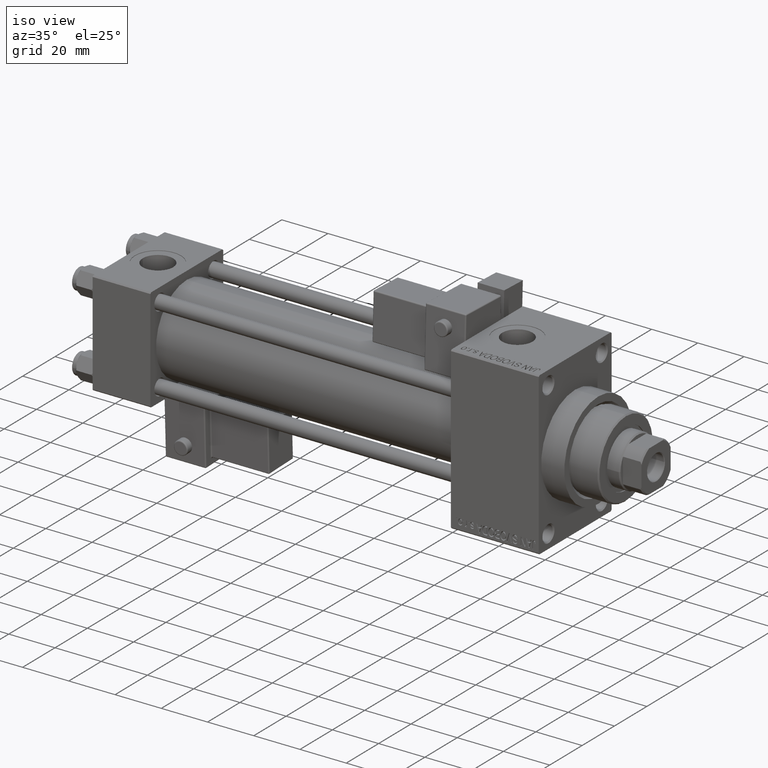
[diagram: clean part render]
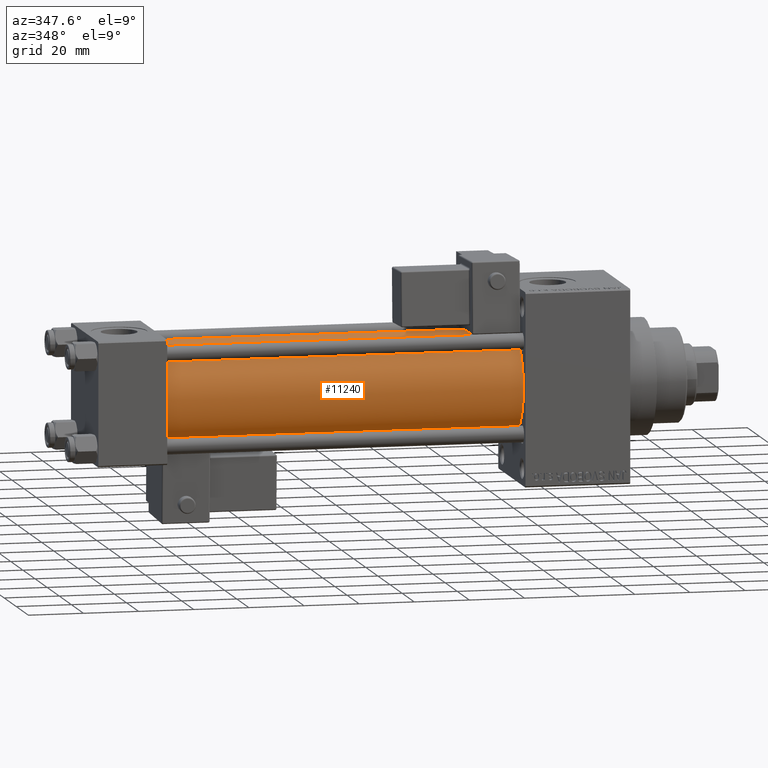
[diagram: tour spotlight — one face highlighted and labeled with its STEP entity id]
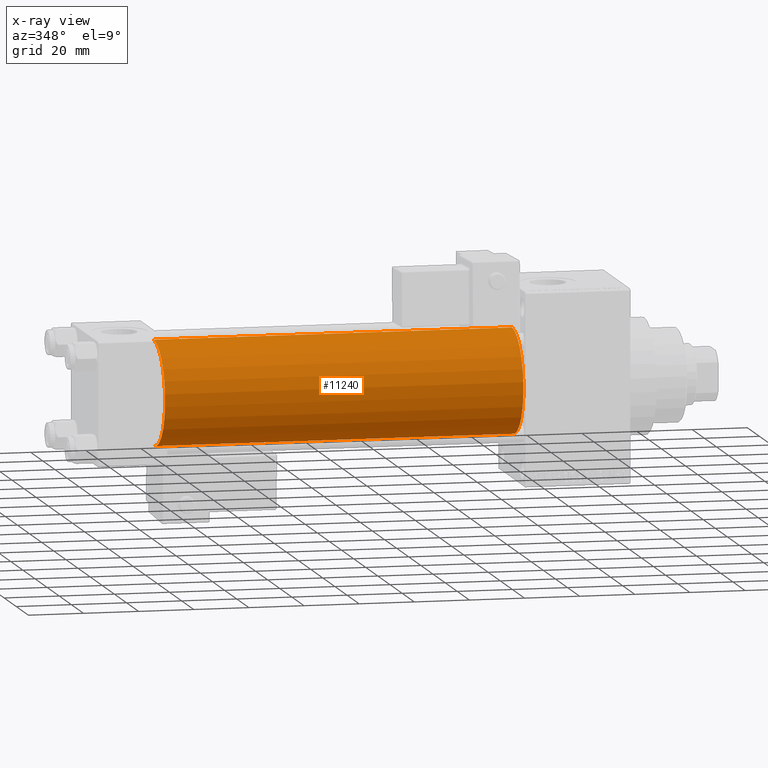
[diagram: x-ray of the same camera — body ghosted, this tour face saturated]
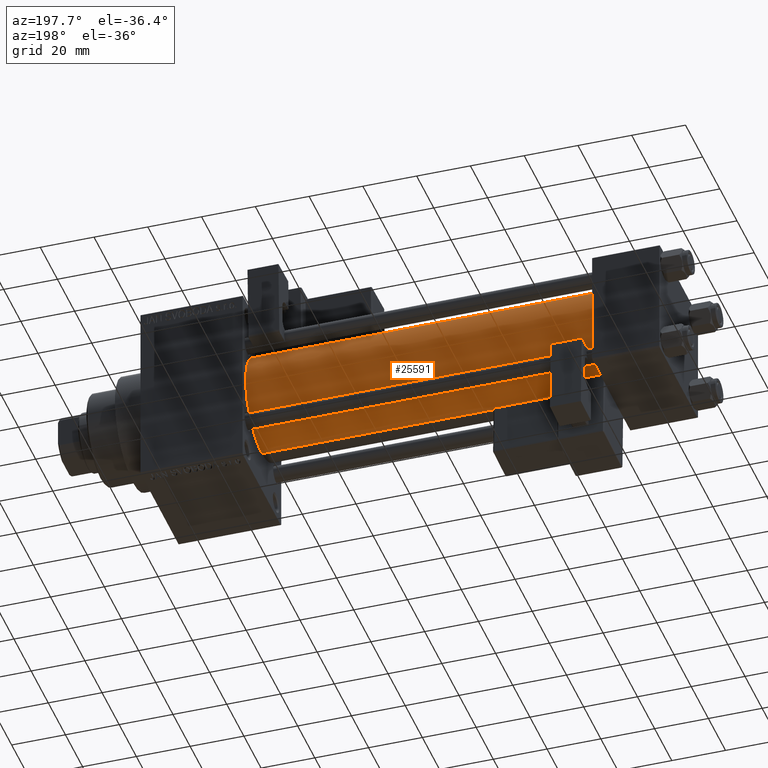
[diagram: tour spotlight — one face highlighted and labeled with its STEP entity id]
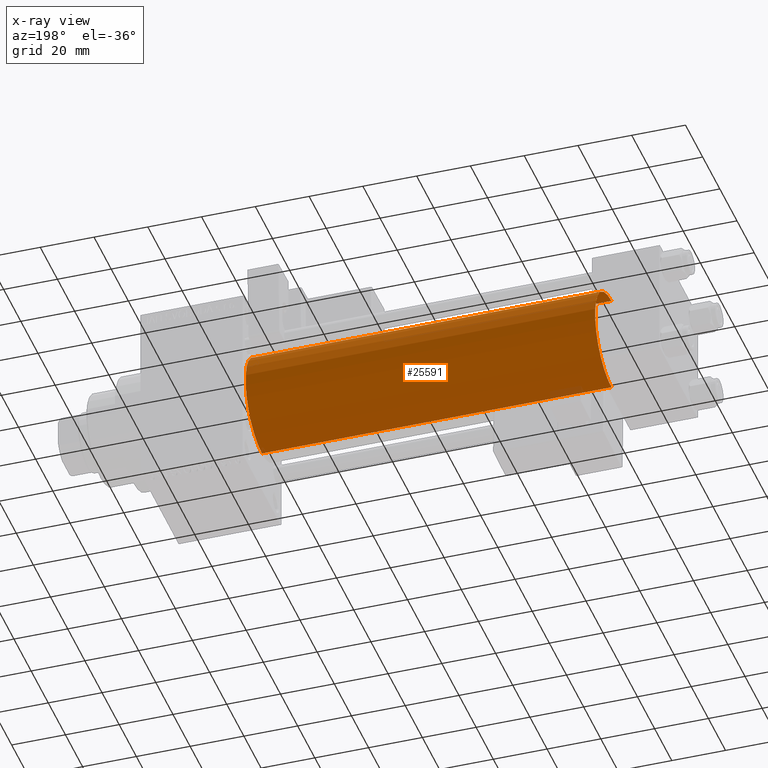
[diagram: x-ray of the same camera — body ghosted, this tour face saturated]
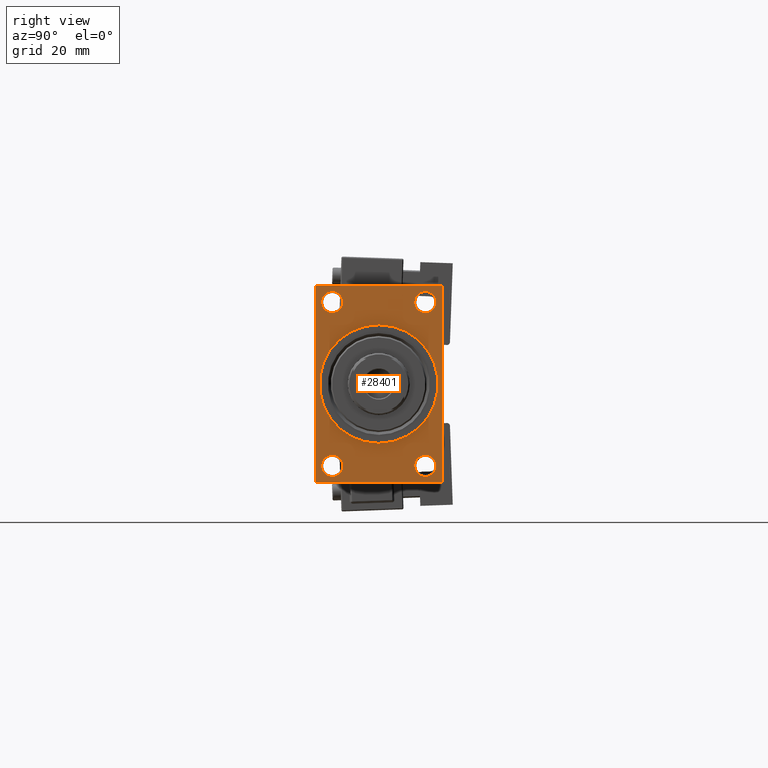
[diagram: tour spotlight — one face highlighted and labeled with its STEP entity id]
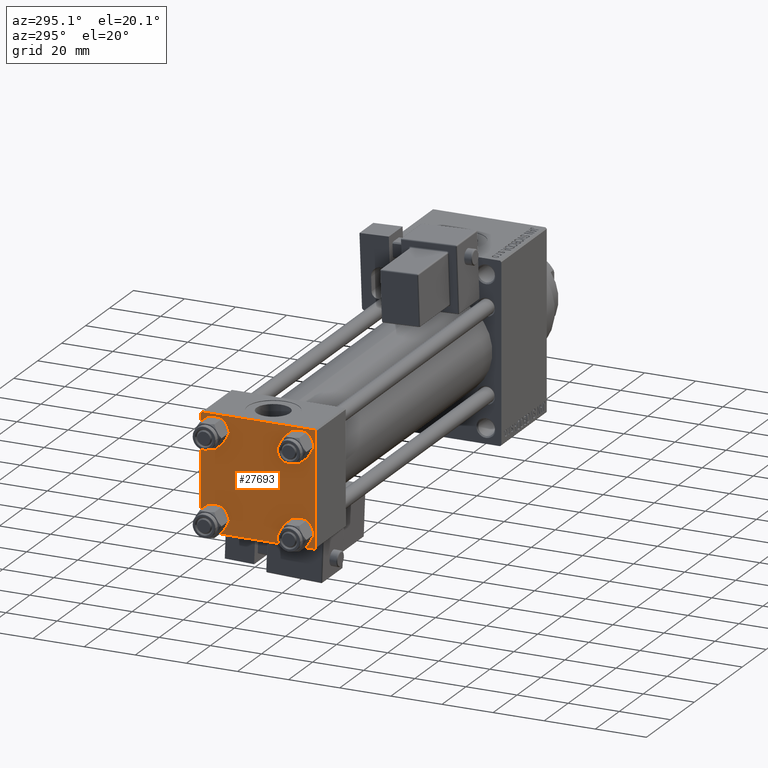
[diagram: tour spotlight — one face highlighted and labeled with its STEP entity id]
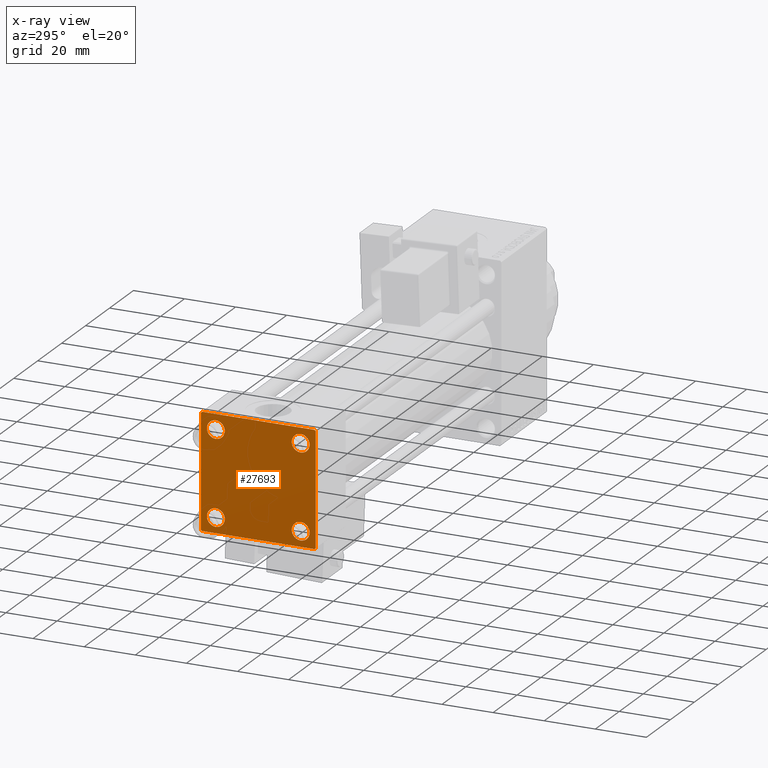
[diagram: x-ray of the same camera — body ghosted, this tour face saturated]
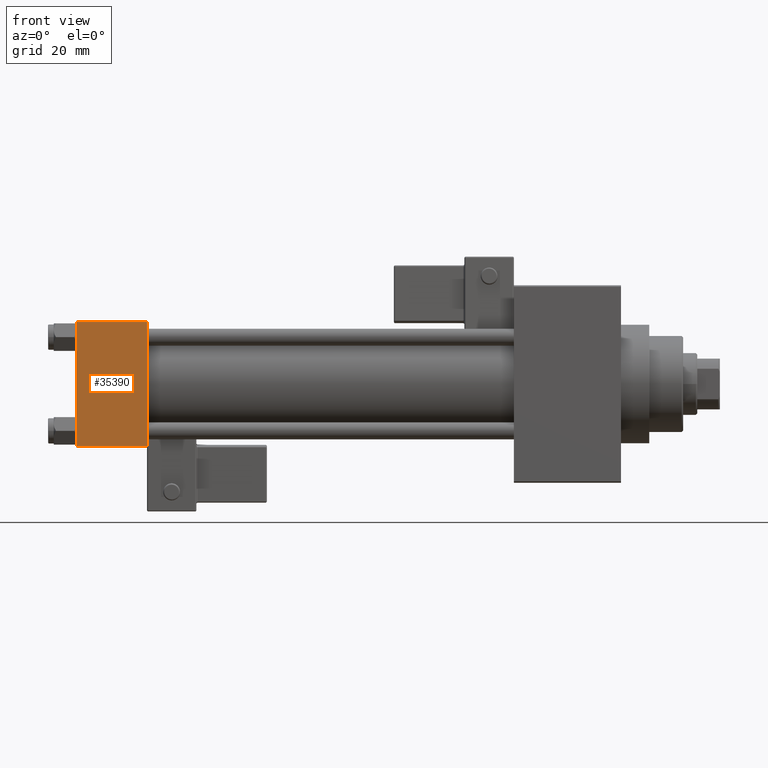
[diagram: tour spotlight — one face highlighted and labeled with its STEP entity id]
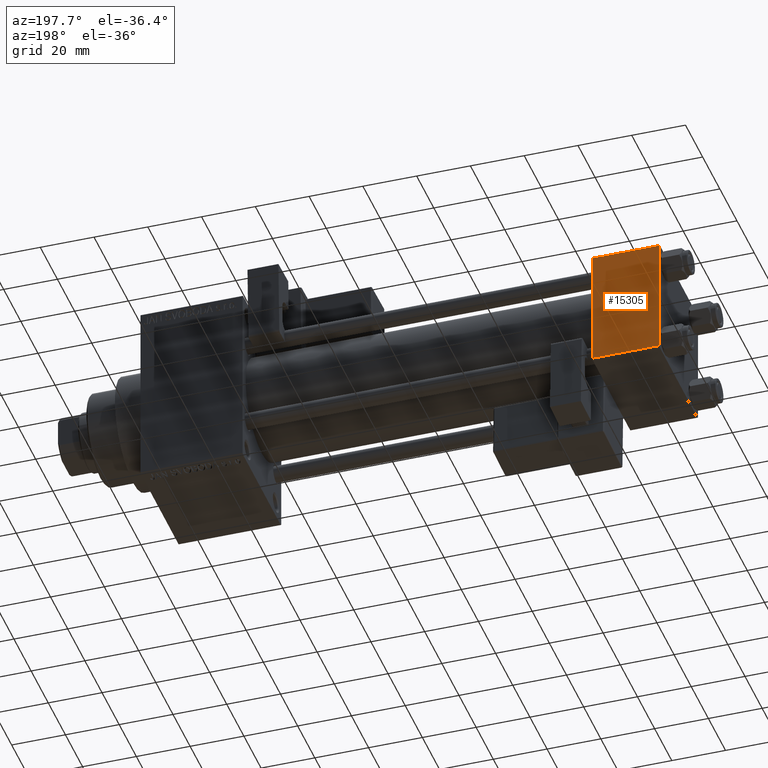
[diagram: tour spotlight — one face highlighted and labeled with its STEP entity id]
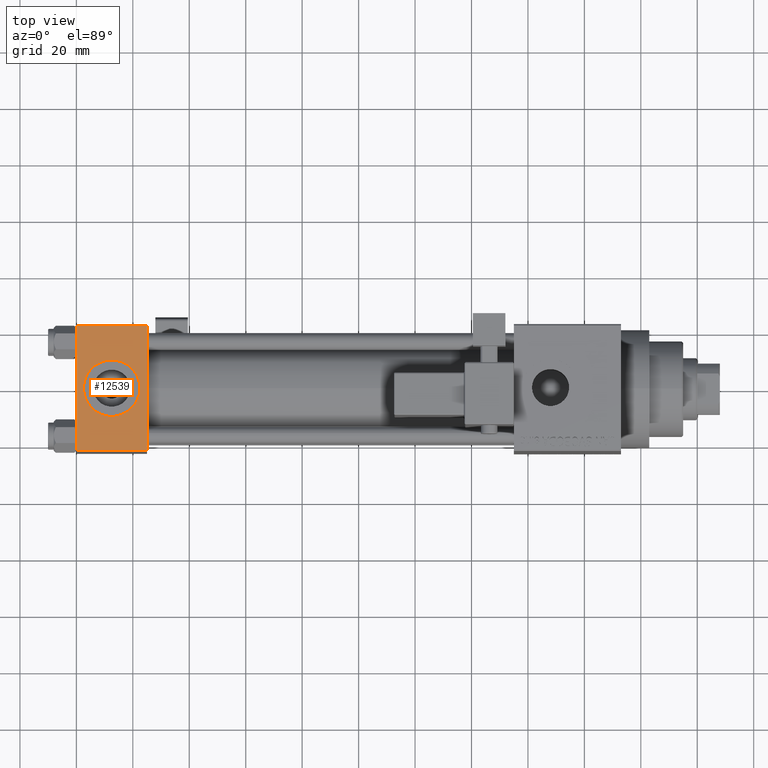
[diagram: tour spotlight — one face highlighted and labeled with its STEP entity id]
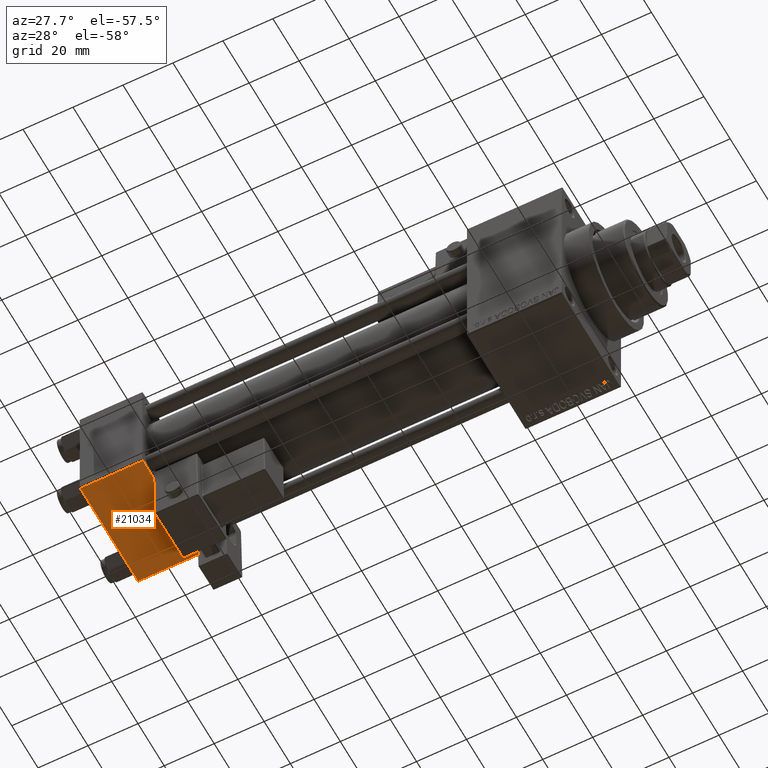
[diagram: tour spotlight — one face highlighted and labeled with its STEP entity id]
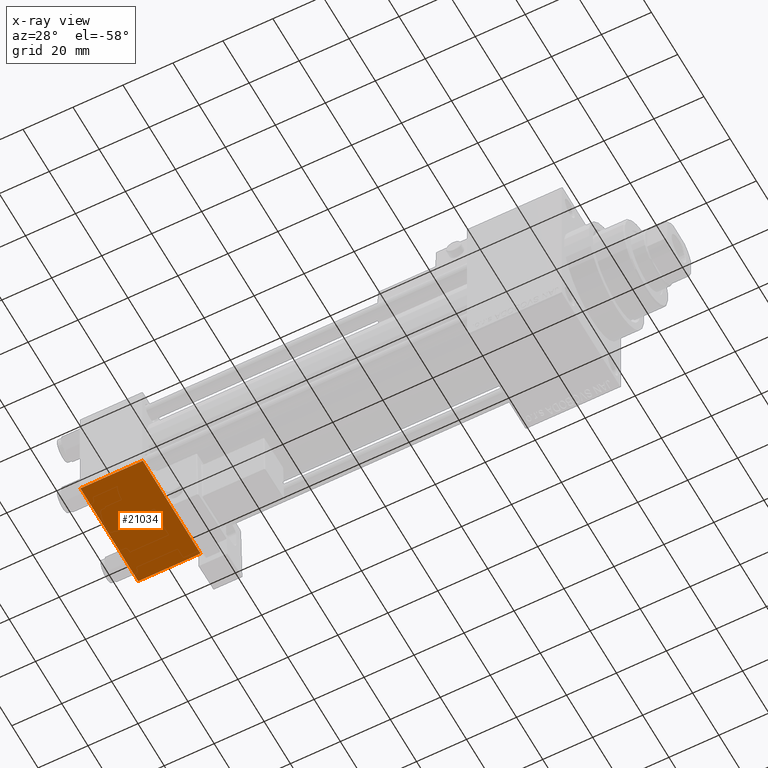
[diagram: x-ray of the same camera — body ghosted, this tour face saturated]
A machine part: a face-by-face anatomy tour. The part has 1262 B-rep faces; the first image is the clean iso view, then the 8 largest visible faces are spotlighted one at a time (largest first), each with its STEP entity span.

Face 1 — auxiliary view, entity #11240. An x-ray twin of the same camera follows (body ghosted, this face saturated) — the face is partly hidden behind the body. In plain terms, the highlighted cylindrical surface (partial cylindrical patch) has radius 19 mm, axis along (-1, -0, -0).
Definition (entity closure, byte-faithful):
#107 = EDGE_CURVE ( 'NONE', #46846, #5130, #5147, .T. ) ;
#403 = CARTESIAN_POINT ( 'NONE',  ( 155.0000000000000000, -2.752562955852396712E-16, -19.00000000000000000 ) ) ;
#5130 = VERTEX_POINT ( 'NONE', #43047 ) ;
#5147 = LINE ( 'NONE', #403, #17198 ) ;
#5642 = AXIS2_PLACEMENT_3D ( 'NONE', #49455, #38683, #48971 ) ;
#7698 = AXIS2_PLACEMENT_3D ( 'NONE', #30702, #38213, #45476 ) ;
#8611 = CIRCLE ( 'NONE', #7698, 19.00000000000000000 ) ;
#10960 = FACE_OUTER_BOUND ( 'NONE', #19989, .T. ) ;
#11240 = ADVANCED_FACE ( 'NONE', ( #10960 ), #26928, .T. ) ;
#11315 = EDGE_CURVE ( 'NONE', #30361, #5130, #24786, .T. ) ;
#15656 = DIRECTION ( 'NONE',  ( -1.000000000000000000, -0.000000000000000000, -0.000000000000000000 ) ) ;
#16425 = CARTESIAN_POINT ( 'NONE',  ( 24.99999999999999289, -2.602085213965210642E-15, 0.000000000000000000 ) ) ;
#17198 = VECTOR ( 'NONE', #15656, 1000.000000000000000 ) ;
#17264 = EDGE_CURVE ( 'NONE', #37964, #30361, #45819, .T. ) ;
#19989 = EDGE_LOOP ( 'NONE', ( #30769, #47817, #47914, #26448 ) ) ;
#23042 = CARTESIAN_POINT ( 'NONE',  ( 155.0000000000000000, -2.602085213965210642E-15, 19.00000000000000000 ) ) ;
#24786 = CIRCLE ( 'NONE', #28781, 19.00000000000000000 ) ;
#25347 = DIRECTION ( 'NONE',  ( 1.000000000000000000, -0.000000000000000000, 0.000000000000000000 ) ) ;
#26448 = ORIENTED_EDGE ( 'NONE', *, *, #11315, .T. ) ;
#26928 = CYLINDRICAL_SURFACE ( 'NONE', #5642, 19.00000000000000000 ) ;
#28781 = AXIS2_PLACEMENT_3D ( 'NONE', #16425, #25347, #40617 ) ;
#30361 = VERTEX_POINT ( 'NONE', #39213 ) ;
#30702 = CARTESIAN_POINT ( 'NONE',  ( 155.0000000000000000, -2.602085213965210642E-15, 0.000000000000000000 ) ) ;
#30769 = ORIENTED_EDGE ( 'NONE', *, *, #107, .F. ) ;
#31234 = VECTOR ( 'NONE', #33816, 1000.000000000000000 ) ;
#33816 = DIRECTION ( 'NONE',  ( -1.000000000000000000, -0.000000000000000000, -0.000000000000000000 ) ) ;
#37964 = VERTEX_POINT ( 'NONE', #45060 ) ;
#38213 = DIRECTION ( 'NONE',  ( 1.000000000000000000, 0.000000000000000000, 0.000000000000000000 ) ) ;
#38683 = DIRECTION ( 'NONE',  ( -1.000000000000000000, -0.000000000000000000, -0.000000000000000000 ) ) ;
#39213 = CARTESIAN_POINT ( 'NONE',  ( 24.99999999999999289, -2.602085213965210642E-15, 19.00000000000000000 ) ) ;
#40617 = DIRECTION ( 'NONE',  ( 0.000000000000000000, 0.000000000000000000, 1.000000000000000000 ) ) ;
#41395 = CARTESIAN_POINT ( 'NONE',  ( 155.0000000000000000, -2.752562955852396712E-16, -19.00000000000000000 ) ) ;
#43047 = CARTESIAN_POINT ( 'NONE',  ( 24.99999999999999289, -2.752562955852396712E-16, -19.00000000000000000 ) ) ;
#44522 = EDGE_CURVE ( 'NONE', #37964, #46846, #8611, .T. ) ;
#45060 = CARTESIAN_POINT ( 'NONE',  ( 155.0000000000000000, -2.602085213965210642E-15, 19.00000000000000000 ) ) ;
#45476 = DIRECTION ( 'NONE',  ( 0.000000000000000000, 0.000000000000000000, -1.000000000000000000 ) ) ;
#45819 = LINE ( 'NONE', #23042, #31234 ) ;
#46846 = VERTEX_POINT ( 'NONE', #41395 ) ;
#47817 = ORIENTED_EDGE ( 'NONE', *, *, #44522, .F. ) ;
#47914 = ORIENTED_EDGE ( 'NONE', *, *, #17264, .T. ) ;
#48971 = DIRECTION ( 'NONE',  ( 0.000000000000000000, 0.000000000000000000, 1.000000000000000000 ) ) ;
#49455 = CARTESIAN_POINT ( 'NONE',  ( 155.0000000000000000, -2.602085213965210642E-15, 0.000000000000000000 ) ) ;

Face 2 — auxiliary view, entity #25591. An x-ray twin of the same camera follows (body ghosted, this face saturated) — the face is partly hidden behind the body. In plain terms, the highlighted cylindrical surface (partial cylindrical patch) has radius 19 mm, axis along (-1, -0, -0).
Definition (entity closure, byte-faithful):
#107 = EDGE_CURVE ( 'NONE', #46846, #5130, #5147, .T. ) ;
#403 = CARTESIAN_POINT ( 'NONE',  ( 155.0000000000000000, -2.752562955852396712E-16, -19.00000000000000000 ) ) ;
#2897 = CARTESIAN_POINT ( 'NONE',  ( 155.0000000000000000, -2.602085213965210642E-15, 0.000000000000000000 ) ) ;
#5130 = VERTEX_POINT ( 'NONE', #43047 ) ;
#5147 = LINE ( 'NONE', #403, #17198 ) ;
#5740 = CIRCLE ( 'NONE', #40863, 19.00000000000000000 ) ;
#7201 = ORIENTED_EDGE ( 'NONE', *, *, #17264, .F. ) ;
#12858 = DIRECTION ( 'NONE',  ( 1.000000000000000000, -0.000000000000000000, 0.000000000000000000 ) ) ;
#15656 = DIRECTION ( 'NONE',  ( -1.000000000000000000, -0.000000000000000000, -0.000000000000000000 ) ) ;
#16083 = EDGE_CURVE ( 'NONE', #46846, #37964, #36023, .T. ) ;
#16356 = DIRECTION ( 'NONE',  ( 0.000000000000000000, 0.000000000000000000, 1.000000000000000000 ) ) ;
#16576 = ORIENTED_EDGE ( 'NONE', *, *, #17056, .T. ) ;
#17056 = EDGE_CURVE ( 'NONE', #5130, #30361, #5740, .T. ) ;
#17198 = VECTOR ( 'NONE', #15656, 1000.000000000000000 ) ;
#17264 = EDGE_CURVE ( 'NONE', #37964, #30361, #45819, .T. ) ;
#18419 = EDGE_LOOP ( 'NONE', ( #31470, #25817, #16576, #7201 ) ) ;
#18459 = AXIS2_PLACEMENT_3D ( 'NONE', #22917, #38188, #19412 ) ;
#19412 = DIRECTION ( 'NONE',  ( 0.000000000000000000, 0.000000000000000000, -1.000000000000000000 ) ) ;
#21404 = CYLINDRICAL_SURFACE ( 'NONE', #22409, 19.00000000000000000 ) ;
#21889 = DIRECTION ( 'NONE',  ( 0.000000000000000000, 0.000000000000000000, 1.000000000000000000 ) ) ;
#22409 = AXIS2_PLACEMENT_3D ( 'NONE', #2897, #36908, #21889 ) ;
#22917 = CARTESIAN_POINT ( 'NONE',  ( 155.0000000000000000, -2.602085213965210642E-15, 0.000000000000000000 ) ) ;
#23042 = CARTESIAN_POINT ( 'NONE',  ( 155.0000000000000000, -2.602085213965210642E-15, 19.00000000000000000 ) ) ;
#25591 = ADVANCED_FACE ( 'NONE', ( #40421 ), #21404, .T. ) ;
#25817 = ORIENTED_EDGE ( 'NONE', *, *, #107, .T. ) ;
#30361 = VERTEX_POINT ( 'NONE', #39213 ) ;
#31234 = VECTOR ( 'NONE', #33816, 1000.000000000000000 ) ;
#31470 = ORIENTED_EDGE ( 'NONE', *, *, #16083, .F. ) ;
#33816 = DIRECTION ( 'NONE',  ( -1.000000000000000000, -0.000000000000000000, -0.000000000000000000 ) ) ;
#35351 = CARTESIAN_POINT ( 'NONE',  ( 24.99999999999999289, -2.602085213965210642E-15, 0.000000000000000000 ) ) ;
#36023 = CIRCLE ( 'NONE', #18459, 19.00000000000000000 ) ;
#36908 = DIRECTION ( 'NONE',  ( -1.000000000000000000, -0.000000000000000000, -0.000000000000000000 ) ) ;
#37964 = VERTEX_POINT ( 'NONE', #45060 ) ;
#38188 = DIRECTION ( 'NONE',  ( 1.000000000000000000, 0.000000000000000000, 0.000000000000000000 ) ) ;
#39213 = CARTESIAN_POINT ( 'NONE',  ( 24.99999999999999289, -2.602085213965210642E-15, 19.00000000000000000 ) ) ;
#40421 = FACE_OUTER_BOUND ( 'NONE', #18419, .T. ) ;
#40863 = AXIS2_PLACEMENT_3D ( 'NONE', #35351, #12858, #16356 ) ;
#41395 = CARTESIAN_POINT ( 'NONE',  ( 155.0000000000000000, -2.752562955852396712E-16, -19.00000000000000000 ) ) ;
#43047 = CARTESIAN_POINT ( 'NONE',  ( 24.99999999999999289, -2.752562955852396712E-16, -19.00000000000000000 ) ) ;
#45060 = CARTESIAN_POINT ( 'NONE',  ( 155.0000000000000000, -2.602085213965210642E-15, 19.00000000000000000 ) ) ;
#45819 = LINE ( 'NONE', #23042, #31234 ) ;
#46846 = VERTEX_POINT ( 'NONE', #41395 ) ;

Face 3 — right view, entity #28401. In plain terms, the highlighted planar face has unit normal (-1, 0, 0).
Definition (entity closure, byte-faithful):
#369 = CARTESIAN_POINT ( 'NONE',  ( 193.0000000000000000, 22.49999999999999645, -34.50000000000000000 ) ) ;
#939 = DIRECTION ( 'NONE',  ( -1.000000000000000000, 0.000000000000000000, -0.000000000000000000 ) ) ;
#965 = DIRECTION ( 'NONE',  ( -1.000000000000000000, -0.000000000000000000, -0.000000000000000000 ) ) ;
#1065 = DIRECTION ( 'NONE',  ( 0.000000000000000000, 0.000000000000000000, -1.000000000000000000 ) ) ;
#1072 = VERTEX_POINT ( 'NONE', #12626 ) ;
#1722 = AXIS2_PLACEMENT_3D ( 'NONE', #46062, #6840, #37820 ) ;
#2135 = CIRCLE ( 'NONE', #35664, 3.750000000000090150 ) ;
#2590 = DIRECTION ( 'NONE',  ( -1.000000000000000000, -0.000000000000000000, -0.000000000000000000 ) ) ;
#2668 = EDGE_CURVE ( 'NONE', #17245, #25389, #17505, .T. ) ;
#3322 = CARTESIAN_POINT ( 'NONE',  ( 193.0000000000000000, 16.50000000000000000, -28.99999999999999289 ) ) ;
#3793 = CARTESIAN_POINT ( 'NONE',  ( 193.0000000000000000, 21.99999999999999645, 35.00000000000000000 ) ) ;
#4304 = EDGE_CURVE ( 'NONE', #17245, #24439, #20756, .T. ) ;
#4346 = ORIENTED_EDGE ( 'NONE', *, *, #17276, .T. ) ;
#4708 = AXIS2_PLACEMENT_3D ( 'NONE', #3322, #2590, #14583 ) ;
#4839 = ORIENTED_EDGE ( 'NONE', *, *, #2668, .T. ) ;
#4964 = DIRECTION ( 'NONE',  ( 0.000000000000000000, 0.000000000000000000, 1.000000000000000000 ) ) ;
#5859 = DIRECTION ( 'NONE',  ( 0.000000000000000000, 0.000000000000000000, 1.000000000000000000 ) ) ;
#6184 = VECTOR ( 'NONE', #39778, 1000.000000000000000 ) ;
#6439 = DIRECTION ( 'NONE',  ( 0.000000000000000000, 0.000000000000000000, -1.000000000000000000 ) ) ;
#6496 = FACE_BOUND ( 'NONE', #35987, .T. ) ;
#6840 = DIRECTION ( 'NONE',  ( -1.000000000000000000, -0.000000000000000000, -0.000000000000000000 ) ) ;
#6853 = EDGE_CURVE ( 'NONE', #10466, #25807, #17451, .T. ) ;
#8040 = EDGE_LOOP ( 'NONE', ( #11390, #34189 ) ) ;
#8144 = CARTESIAN_POINT ( 'NONE',  ( 193.0000000000000000, -16.50000000000000000, -28.99999999999999289 ) ) ;
#8150 = AXIS2_PLACEMENT_3D ( 'NONE', #31439, #939, #16200 ) ;
#8254 = AXIS2_PLACEMENT_3D ( 'NONE', #33653, #29903, #6439 ) ;
#8590 = ORIENTED_EDGE ( 'NONE', *, *, #14898, .T. ) ;
#8622 = CARTESIAN_POINT ( 'NONE',  ( 193.0000000000000000, 16.50000000000000000, 29.00000000000000355 ) ) ;
#8695 = AXIS2_PLACEMENT_3D ( 'NONE', #8622, #15129, #5859 ) ;
#8802 = EDGE_LOOP ( 'NONE', ( #28400, #16401 ) ) ;
#9074 = CARTESIAN_POINT ( 'NONE',  ( 193.0000000000000000, -22.50000000000000355, -34.50000000000000000 ) ) ;
#9333 = VERTEX_POINT ( 'NONE', #9074 ) ;
#10466 = VERTEX_POINT ( 'NONE', #18580 ) ;
#10631 = VERTEX_POINT ( 'NONE', #36301 ) ;
#10829 = CARTESIAN_POINT ( 'NONE',  ( 193.0000000000000000, 22.49999999999999645, 34.50000000000000000 ) ) ;
#10954 = VECTOR ( 'NONE', #32230, 1000.000000000000000 ) ;
#11390 = ORIENTED_EDGE ( 'NONE', *, *, #45781, .T. ) ;
#11468 = FACE_BOUND ( 'NONE', #31835, .T. ) ;
#11550 = VERTEX_POINT ( 'NONE', #36291 ) ;
#11608 = VECTOR ( 'NONE', #38224, 1000.000000000000000 ) ;
#11776 = CIRCLE ( 'NONE', #4708, 3.750000000000090150 ) ;
#11924 = LINE ( 'NONE', #38666, #21019 ) ;
#12353 = VECTOR ( 'NONE', #36876, 1000.000000000000000 ) ;
#12426 = DIRECTION ( 'NONE',  ( -1.000000000000000000, -0.000000000000000000, -0.000000000000000000 ) ) ;
#12626 = CARTESIAN_POINT ( 'NONE',  ( 193.0000000000000000, 16.50000000000000000, 32.75000000000009237 ) ) ;
#14066 = ORIENTED_EDGE ( 'NONE', *, *, #43209, .T. ) ;
#14583 = DIRECTION ( 'NONE',  ( 0.000000000000000000, 0.000000000000000000, 1.000000000000000000 ) ) ;
#14898 = EDGE_CURVE ( 'NONE', #41746, #10631, #45014, .T. ) ;
#15129 = DIRECTION ( 'NONE',  ( -1.000000000000000000, -0.000000000000000000, -0.000000000000000000 ) ) ;
#15215 = FACE_BOUND ( 'NONE', #43657, .T. ) ;
#15216 = AXIS2_PLACEMENT_3D ( 'NONE', #16179, #12426, #25646 ) ;
#15457 = CIRCLE ( 'NONE', #8254, 21.00000000000000000 ) ;
#16179 = CARTESIAN_POINT ( 'NONE',  ( 193.0000000000000000, -16.50000000000000000, 29.00000000000000711 ) ) ;
#16200 = DIRECTION ( 'NONE',  ( -0.000000000000000000, 0.000000000000000000, 1.000000000000000000 ) ) ;
#16401 = ORIENTED_EDGE ( 'NONE', *, *, #31368, .F. ) ;
#16741 = LINE ( 'NONE', #27972, #10954 ) ;
#16782 = CIRCLE ( 'NONE', #15216, 3.750000000000083045 ) ;
#17245 = VERTEX_POINT ( 'NONE', #10829 ) ;
#17276 = EDGE_CURVE ( 'NONE', #11550, #32455, #23265, .T. ) ;
#17405 = EDGE_CURVE ( 'NONE', #9333, #49130, #43063, .T. ) ;
#17451 = CIRCLE ( 'NONE', #20641, 21.00000000000000000 ) ;
#17502 = DIRECTION ( 'NONE',  ( 0.000000000000000000, 0.000000000000000000, 1.000000000000000000 ) ) ;
#17505 = LINE ( 'NONE', #29242, #40479 ) ;
#18314 = VERTEX_POINT ( 'NONE', #20107 ) ;
#18361 = VECTOR ( 'NONE', #30904, 1000.000000000000114 ) ;
#18580 = CARTESIAN_POINT ( 'NONE',  ( 193.0000000000000000, 0.000000000000000000, 21.00000000000000000 ) ) ;
#19185 = EDGE_CURVE ( 'NONE', #30126, #18314, #36134, .T. ) ;
#20107 = CARTESIAN_POINT ( 'NONE',  ( 193.0000000000000000, -16.50000000000000000, -32.75000000000008527 ) ) ;
#20641 = AXIS2_PLACEMENT_3D ( 'NONE', #28299, #47074, #1065 ) ;
#20746 = DIRECTION ( 'NONE',  ( 0.000000000000000000, -0.7071067811865474617, 0.7071067811865474617 ) ) ;
#20756 = LINE ( 'NONE', #24505, #6184 ) ;
#21019 = VECTOR ( 'NONE', #24389, 1000.000000000000114 ) ;
#21658 = CARTESIAN_POINT ( 'NONE',  ( 193.0000000000000000, 16.50000000000000000, 25.24999999999991829 ) ) ;
#22909 = ORIENTED_EDGE ( 'NONE', *, *, #32319, .T. ) ;
#23016 = ORIENTED_EDGE ( 'NONE', *, *, #33764, .T. ) ;
#23265 = CIRCLE ( 'NONE', #1722, 3.750000000000090150 ) ;
#23294 = CARTESIAN_POINT ( 'NONE',  ( 193.0000000000000000, -21.99999999999998934, -35.00000000000000000 ) ) ;
#23691 = CARTESIAN_POINT ( 'NONE',  ( 193.0000000000000000, 22.49999999999999645, -35.00000000000000000 ) ) ;
#23924 = ORIENTED_EDGE ( 'NONE', *, *, #24271, .T. ) ;
#24271 = EDGE_CURVE ( 'NONE', #26066, #40392, #16782, .T. ) ;
#24389 = DIRECTION ( 'NONE',  ( -0.000000000000000000, 0.7071067811865474617, 0.7071067811865474617 ) ) ;
#24439 = VERTEX_POINT ( 'NONE', #369 ) ;
#24505 = CARTESIAN_POINT ( 'NONE',  ( 193.0000000000000000, 22.49999999999999645, 35.00000000000000000 ) ) ;
#24913 = CARTESIAN_POINT ( 'NONE',  ( 193.0000000000000000, -21.99999999999998934, 35.00000000000000000 ) ) ;
#25068 = CARTESIAN_POINT ( 'NONE',  ( 193.0000000000000000, -16.50000000000000000, -25.24999999999990763 ) ) ;
#25122 = CARTESIAN_POINT ( 'NONE',  ( 193.0000000000000000, -22.50000000000000355, 35.00000000000000000 ) ) ;
#25389 = VERTEX_POINT ( 'NONE', #3793 ) ;
#25646 = DIRECTION ( 'NONE',  ( 0.000000000000000000, 0.000000000000000000, 1.000000000000000000 ) ) ;
#25807 = VERTEX_POINT ( 'NONE', #41343 ) ;
#26066 = VERTEX_POINT ( 'NONE', #33033 ) ;
#26172 = EDGE_LOOP ( 'NONE', ( #47077, #39768, #45722, #39645, #27336, #4839, #14066, #8590 ) ) ;
#26652 = VERTEX_POINT ( 'NONE', #21658 ) ;
#27336 = ORIENTED_EDGE ( 'NONE', *, *, #4304, .F. ) ;
#27609 = DIRECTION ( 'NONE',  ( 0.000000000000000000, 0.000000000000000000, 1.000000000000000000 ) ) ;
#27691 = LINE ( 'NONE', #23691, #11608 ) ;
#27948 = ORIENTED_EDGE ( 'NONE', *, *, #48184, .T. ) ;
#27972 = CARTESIAN_POINT ( 'NONE',  ( 193.0000000000000000, 22.49999999999999645, 35.00000000000000000 ) ) ;
#28299 = CARTESIAN_POINT ( 'NONE',  ( 193.0000000000000000, 0.000000000000000000, 0.000000000000000000 ) ) ;
#28400 = ORIENTED_EDGE ( 'NONE', *, *, #6853, .F. ) ;
#28401 = ADVANCED_FACE ( 'NONE', ( #15215, #45716, #11468, #6496, #36989, #38954 ), #31189, .F. ) ;
#28850 = VECTOR ( 'NONE', #35031, 1000.000000000000114 ) ;
#29242 = CARTESIAN_POINT ( 'NONE',  ( 193.0000000000000000, 21.99999999999999645, 35.00000000000000000 ) ) ;
#29903 = DIRECTION ( 'NONE',  ( 1.000000000000000000, 0.000000000000000000, 0.000000000000000000 ) ) ;
#30113 = DIRECTION ( 'NONE',  ( -1.000000000000000000, -0.000000000000000000, -0.000000000000000000 ) ) ;
#30126 = VERTEX_POINT ( 'NONE', #25068 ) ;
#30876 = DIRECTION ( 'NONE',  ( -1.000000000000000000, -0.000000000000000000, -0.000000000000000000 ) ) ;
#30904 = DIRECTION ( 'NONE',  ( -0.000000000000000000, -0.7071067811865474617, -0.7071067811865474617 ) ) ;
#30951 = CARTESIAN_POINT ( 'NONE',  ( 193.0000000000000000, 16.50000000000000000, -25.24999999999990763 ) ) ;
#31038 = CIRCLE ( 'NONE', #8695, 3.750000000000086597 ) ;
#31189 = PLANE ( 'NONE',  #8150 ) ;
#31368 = EDGE_CURVE ( 'NONE', #25807, #10466, #15457, .T. ) ;
#31439 = CARTESIAN_POINT ( 'NONE',  ( 193.0000000000000000, 0.000000000000000000, 0.000000000000000000 ) ) ;
#31705 = CARTESIAN_POINT ( 'NONE',  ( 193.0000000000000000, -16.50000000000000000, -28.99999999999999289 ) ) ;
#31835 = EDGE_LOOP ( 'NONE', ( #4346, #40176 ) ) ;
#31839 = CARTESIAN_POINT ( 'NONE',  ( 193.0000000000000000, -16.50000000000000000, 32.75000000000009237 ) ) ;
#32230 = DIRECTION ( 'NONE',  ( 0.000000000000000000, -1.000000000000000000, 0.000000000000000000 ) ) ;
#32319 = EDGE_CURVE ( 'NONE', #26652, #1072, #47291, .T. ) ;
#32455 = VERTEX_POINT ( 'NONE', #30951 ) ;
#33033 = CARTESIAN_POINT ( 'NONE',  ( 193.0000000000000000, -16.50000000000000000, 25.24999999999992539 ) ) ;
#33653 = CARTESIAN_POINT ( 'NONE',  ( 193.0000000000000000, 0.000000000000000000, 0.000000000000000000 ) ) ;
#33764 = EDGE_CURVE ( 'NONE', #40392, #26066, #48165, .T. ) ;
#34169 = EDGE_CURVE ( 'NONE', #43222, #24439, #11924, .T. ) ;
#34189 = ORIENTED_EDGE ( 'NONE', *, *, #19185, .T. ) ;
#35031 = DIRECTION ( 'NONE',  ( 0.000000000000000000, 0.7071067811865474617, -0.7071067811865474617 ) ) ;
#35299 = AXIS2_PLACEMENT_3D ( 'NONE', #8144, #30876, #27609 ) ;
#35664 = AXIS2_PLACEMENT_3D ( 'NONE', #31705, #965, #4964 ) ;
#35987 = EDGE_LOOP ( 'NONE', ( #22909, #27948 ) ) ;
#36134 = CIRCLE ( 'NONE', #35299, 3.750000000000090150 ) ;
#36291 = CARTESIAN_POINT ( 'NONE',  ( 193.0000000000000000, 16.50000000000000000, -32.75000000000008527 ) ) ;
#36301 = CARTESIAN_POINT ( 'NONE',  ( 193.0000000000000000, -22.50000000000000355, 34.50000000000000000 ) ) ;
#36876 = DIRECTION ( 'NONE',  ( 0.000000000000000000, 0.000000000000000000, -1.000000000000000000 ) ) ;
#36989 = FACE_BOUND ( 'NONE', #8802, .T. ) ;
#37480 = EDGE_CURVE ( 'NONE', #10631, #9333, #44155, .T. ) ;
#37757 = AXIS2_PLACEMENT_3D ( 'NONE', #39026, #30113, #48645 ) ;
#37820 = DIRECTION ( 'NONE',  ( 0.000000000000000000, 0.000000000000000000, 1.000000000000000000 ) ) ;
#38224 = DIRECTION ( 'NONE',  ( 0.000000000000000000, -1.000000000000000000, 0.000000000000000000 ) ) ;
#38313 = EDGE_CURVE ( 'NONE', #43222, #49130, #27691, .T. ) ;
#38503 = AXIS2_PLACEMENT_3D ( 'NONE', #44027, #40013, #17502 ) ;
#38666 = CARTESIAN_POINT ( 'NONE',  ( 193.0000000000000000, 22.49999999999999645, -34.50000000000000000 ) ) ;
#38954 = FACE_OUTER_BOUND ( 'NONE', #26172, .T. ) ;
#39026 = CARTESIAN_POINT ( 'NONE',  ( 193.0000000000000000, -16.50000000000000000, 29.00000000000000711 ) ) ;
#39645 = ORIENTED_EDGE ( 'NONE', *, *, #34169, .T. ) ;
#39747 = CARTESIAN_POINT ( 'NONE',  ( 193.0000000000000000, 21.99999999999999645, -35.00000000000000000 ) ) ;
#39768 = ORIENTED_EDGE ( 'NONE', *, *, #17405, .T. ) ;
#39778 = DIRECTION ( 'NONE',  ( 0.000000000000000000, 0.000000000000000000, -1.000000000000000000 ) ) ;
#40013 = DIRECTION ( 'NONE',  ( -1.000000000000000000, -0.000000000000000000, -0.000000000000000000 ) ) ;
#40176 = ORIENTED_EDGE ( 'NONE', *, *, #47252, .T. ) ;
#40392 = VERTEX_POINT ( 'NONE', #31839 ) ;
#40479 = VECTOR ( 'NONE', #20746, 1000.000000000000114 ) ;
#41343 = CARTESIAN_POINT ( 'NONE',  ( 193.0000000000000000, 2.571758278209441661E-15, -21.00000000000000000 ) ) ;
#41746 = VERTEX_POINT ( 'NONE', #24913 ) ;
#43063 = LINE ( 'NONE', #47297, #28850 ) ;
#43209 = EDGE_CURVE ( 'NONE', #25389, #41746, #16741, .T. ) ;
#43222 = VERTEX_POINT ( 'NONE', #39747 ) ;
#43657 = EDGE_LOOP ( 'NONE', ( #23924, #23016 ) ) ;
#44027 = CARTESIAN_POINT ( 'NONE',  ( 193.0000000000000000, 16.50000000000000000, 29.00000000000000355 ) ) ;
#44155 = LINE ( 'NONE', #25122, #12353 ) ;
#44531 = CARTESIAN_POINT ( 'NONE',  ( 193.0000000000000000, -22.50000000000000355, 34.50000000000000000 ) ) ;
#45014 = LINE ( 'NONE', #44531, #18361 ) ;
#45716 = FACE_BOUND ( 'NONE', #8040, .T. ) ;
#45722 = ORIENTED_EDGE ( 'NONE', *, *, #38313, .F. ) ;
#45781 = EDGE_CURVE ( 'NONE', #18314, #30126, #2135, .T. ) ;
#46062 = CARTESIAN_POINT ( 'NONE',  ( 193.0000000000000000, 16.50000000000000000, -28.99999999999999289 ) ) ;
#47074 = DIRECTION ( 'NONE',  ( 1.000000000000000000, 0.000000000000000000, 0.000000000000000000 ) ) ;
#47077 = ORIENTED_EDGE ( 'NONE', *, *, #37480, .T. ) ;
#47252 = EDGE_CURVE ( 'NONE', #32455, #11550, #11776, .T. ) ;
#47291 = CIRCLE ( 'NONE', #38503, 3.750000000000086597 ) ;
#47297 = CARTESIAN_POINT ( 'NONE',  ( 193.0000000000000000, -22.00000000000000355, -35.00000000000000000 ) ) ;
#48165 = CIRCLE ( 'NONE', #37757, 3.750000000000083045 ) ;
#48184 = EDGE_CURVE ( 'NONE', #1072, #26652, #31038, .T. ) ;
#48645 = DIRECTION ( 'NONE',  ( 0.000000000000000000, 0.000000000000000000, 1.000000000000000000 ) ) ;
#49130 = VERTEX_POINT ( 'NONE', #23294 ) ;

Face 4 — auxiliary view, entity #27693. An x-ray twin of the same camera follows (body ghosted, this face saturated) — the face is partly hidden behind the body. In plain terms, the highlighted planar face has unit normal (-1, 0, 0).
Definition (entity closure, byte-faithful):
#73 = AXIS2_PLACEMENT_3D ( 'NONE', #23850, #35592, #1107 ) ;
#941 = DIRECTION ( 'NONE',  ( 0.000000000000000000, 0.000000000000000000, 1.000000000000000000 ) ) ;
#999 = LINE ( 'NONE', #5247, #3000 ) ;
#1020 = DIRECTION ( 'NONE',  ( 0.000000000000000000, 0.000000000000000000, 1.000000000000000000 ) ) ;
#1107 = DIRECTION ( 'NONE',  ( 0.000000000000000000, 0.000000000000000000, 1.000000000000000000 ) ) ;
#1209 = ORIENTED_EDGE ( 'NONE', *, *, #12647, .F. ) ;
#1366 = LINE ( 'NONE', #47131, #13518 ) ;
#1436 = CARTESIAN_POINT ( 'NONE',  ( 0.000000000000000000, -16.59999999999999076, 16.60000000000000853 ) ) ;
#1629 = EDGE_CURVE ( 'NONE', #33252, #49246, #10883, .T. ) ;
#1838 = ORIENTED_EDGE ( 'NONE', *, *, #21888, .T. ) ;
#2319 = ORIENTED_EDGE ( 'NONE', *, *, #44402, .F. ) ;
#2773 = ORIENTED_EDGE ( 'NONE', *, *, #23974, .T. ) ;
#3000 = VECTOR ( 'NONE', #27738, 1000.000000000000000 ) ;
#3060 = DIRECTION ( 'NONE',  ( 1.000000000000000000, -0.000000000000000000, 0.000000000000000000 ) ) ;
#3358 = EDGE_CURVE ( 'NONE', #48061, #7261, #15657, .T. ) ;
#4009 = AXIS2_PLACEMENT_3D ( 'NONE', #29555, #3060, #7544 ) ;
#4091 = EDGE_LOOP ( 'NONE', ( #16132, #7310 ) ) ;
#4108 = EDGE_CURVE ( 'NONE', #33299, #20705, #10182, .T. ) ;
#4143 = CARTESIAN_POINT ( 'NONE',  ( 0.000000000000000000, 0.000000000000000000, 0.000000000000000000 ) ) ;
#4153 = DIRECTION ( 'NONE',  ( 0.000000000000000000, 0.7071067811865474617, -0.7071067811865474617 ) ) ;
#4548 = DIRECTION ( 'NONE',  ( 0.000000000000000000, 0.000000000000000000, 1.000000000000000000 ) ) ;
#4827 = DIRECTION ( 'NONE',  ( 0.000000000000000000, -0.7071067811865426878, 0.7071067811865524577 ) ) ;
#4884 = PLANE ( 'NONE',  #23258 ) ;
#4885 = VERTEX_POINT ( 'NONE', #37076 ) ;
#5247 = CARTESIAN_POINT ( 'NONE',  ( 0.000000000000000000, 22.25000000000014566, -22.24999999999984013 ) ) ;
#5656 = EDGE_LOOP ( 'NONE', ( #8915, #49175 ) ) ;
#6234 = LINE ( 'NONE', #25938, #28732 ) ;
#7261 = VERTEX_POINT ( 'NONE', #32070 ) ;
#7310 = ORIENTED_EDGE ( 'NONE', *, *, #25689, .T. ) ;
#7544 = DIRECTION ( 'NONE',  ( 0.000000000000000000, 0.000000000000000000, 1.000000000000000000 ) ) ;
#7857 = EDGE_CURVE ( 'NONE', #32881, #39206, #26113, .T. ) ;
#8915 = ORIENTED_EDGE ( 'NONE', *, *, #1629, .T. ) ;
#9142 = DIRECTION ( 'NONE',  ( 0.000000000000000000, 0.000000000000000000, -1.000000000000000000 ) ) ;
#9145 = DIRECTION ( 'NONE',  ( 0.000000000000000000, 0.000000000000000000, 1.000000000000000000 ) ) ;
#9152 = FACE_BOUND ( 'NONE', #37138, .T. ) ;
#9914 = AXIS2_PLACEMENT_3D ( 'NONE', #44672, #17659, #18146 ) ;
#10182 = CIRCLE ( 'NONE', #45288, 3.499999999999996003 ) ;
#10368 = DIRECTION ( 'NONE',  ( -0.000000000000000000, 0.7071067811865525687, 0.7071067811865425767 ) ) ;
#10883 = CIRCLE ( 'NONE', #13267, 3.499999999999996003 ) ;
#11230 = VECTOR ( 'NONE', #10368, 999.9999999999998863 ) ;
#11615 = DIRECTION ( 'NONE',  ( 1.000000000000000000, -0.000000000000000000, 0.000000000000000000 ) ) ;
#12633 = DIRECTION ( 'NONE',  ( 1.000000000000000000, -0.000000000000000000, 0.000000000000000000 ) ) ;
#12647 = EDGE_CURVE ( 'NONE', #42168, #35269, #1366, .T. ) ;
#12703 = EDGE_CURVE ( 'NONE', #42168, #16212, #43893, .T. ) ;
#12791 = CIRCLE ( 'NONE', #4009, 3.499999999999996003 ) ;
#12916 = CARTESIAN_POINT ( 'NONE',  ( 0.000000000000000000, -21.99999999999997868, 22.50000000000000000 ) ) ;
#12950 = ORIENTED_EDGE ( 'NONE', *, *, #3358, .T. ) ;
#13267 = AXIS2_PLACEMENT_3D ( 'NONE', #1436, #39949, #941 ) ;
#13518 = VECTOR ( 'NONE', #9142, 1000.000000000000000 ) ;
#14612 = EDGE_CURVE ( 'NONE', #27341, #4885, #12791, .T. ) ;
#15169 = CARTESIAN_POINT ( 'NONE',  ( 0.000000000000000000, 22.24999999999999645, 22.24999999999999645 ) ) ;
#15657 = LINE ( 'NONE', #15169, #32465 ) ;
#15989 = ORIENTED_EDGE ( 'NONE', *, *, #7857, .T. ) ;
#16132 = ORIENTED_EDGE ( 'NONE', *, *, #4108, .T. ) ;
#16212 = VERTEX_POINT ( 'NONE', #12916 ) ;
#17495 = LINE ( 'NONE', #22208, #25335 ) ;
#17640 = DIRECTION ( 'NONE',  ( 0.000000000000000000, -1.000000000000000000, -2.312964634635742957E-16 ) ) ;
#17659 = DIRECTION ( 'NONE',  ( 1.000000000000000000, -0.000000000000000000, 0.000000000000000000 ) ) ;
#17812 = CARTESIAN_POINT ( 'NONE',  ( 0.000000000000000000, 21.99999999999999289, -22.49999999999999645 ) ) ;
#18146 = DIRECTION ( 'NONE',  ( 0.000000000000000000, 0.000000000000000000, 1.000000000000000000 ) ) ;
#19384 = FACE_OUTER_BOUND ( 'NONE', #41399, .T. ) ;
#19684 = AXIS2_PLACEMENT_3D ( 'NONE', #46560, #38803, #4548 ) ;
#20078 = CARTESIAN_POINT ( 'NONE',  ( 0.000000000000000000, -16.59999999999999076, -16.60000000000000853 ) ) ;
#20535 = CARTESIAN_POINT ( 'NONE',  ( 0.000000000000000000, -16.59999999999999076, 13.10000000000001030 ) ) ;
#20682 = VECTOR ( 'NONE', #17640, 1000.000000000000000 ) ;
#20705 = VERTEX_POINT ( 'NONE', #44872 ) ;
#21459 = DIRECTION ( 'NONE',  ( 0.000000000000000000, 0.000000000000000000, -1.000000000000000000 ) ) ;
#21888 = EDGE_CURVE ( 'NONE', #39206, #35269, #42847, .T. ) ;
#22179 = CARTESIAN_POINT ( 'NONE',  ( 0.000000000000000000, 22.50000000000000000, -21.99999999999996803 ) ) ;
#22208 = CARTESIAN_POINT ( 'NONE',  ( 0.000000000000000000, 22.50000000000000000, 22.50000000000000355 ) ) ;
#23258 = AXIS2_PLACEMENT_3D ( 'NONE', #4143, #27617, #31385 ) ;
#23659 = CARTESIAN_POINT ( 'NONE',  ( 0.000000000000000000, 21.99999999999999289, 22.50000000000000355 ) ) ;
#23850 = CARTESIAN_POINT ( 'NONE',  ( 0.000000000000000000, 16.59999999999999787, -16.60000000000000497 ) ) ;
#23974 = EDGE_CURVE ( 'NONE', #7261, #34823, #6234, .T. ) ;
#24255 = CARTESIAN_POINT ( 'NONE',  ( 0.000000000000000000, 16.59999999999999787, 20.10000000000000142 ) ) ;
#24628 = EDGE_LOOP ( 'NONE', ( #30096, #43974 ) ) ;
#24739 = CARTESIAN_POINT ( 'NONE',  ( 0.000000000000000000, -16.59999999999999076, -20.10000000000000497 ) ) ;
#24773 = ORIENTED_EDGE ( 'NONE', *, *, #31526, .T. ) ;
#25335 = VECTOR ( 'NONE', #37477, 1000.000000000000000 ) ;
#25689 = EDGE_CURVE ( 'NONE', #20705, #33299, #39201, .T. ) ;
#25938 = CARTESIAN_POINT ( 'NONE',  ( 0.000000000000000000, 22.50000000000000000, 22.50000000000000355 ) ) ;
#26113 = LINE ( 'NONE', #44410, #20682 ) ;
#27018 = CARTESIAN_POINT ( 'NONE',  ( 0.000000000000000000, 16.59999999999999787, -16.60000000000000497 ) ) ;
#27079 = ORIENTED_EDGE ( 'NONE', *, *, #49215, .T. ) ;
#27341 = VERTEX_POINT ( 'NONE', #24739 ) ;
#27359 = AXIS2_PLACEMENT_3D ( 'NONE', #20078, #11615, #35076 ) ;
#27617 = DIRECTION ( 'NONE',  ( -1.000000000000000000, 0.000000000000000000, -0.000000000000000000 ) ) ;
#27693 = ADVANCED_FACE ( 'NONE', ( #43406, #31624, #30884, #9152, #19384 ), #4884, .T. ) ;
#27738 = DIRECTION ( 'NONE',  ( -0.000000000000000000, -0.7071067811865426878, -0.7071067811865524577 ) ) ;
#27760 = DIRECTION ( 'NONE',  ( 1.000000000000000000, -0.000000000000000000, 0.000000000000000000 ) ) ;
#28221 = CIRCLE ( 'NONE', #48206, 3.499999999999996003 ) ;
#28732 = VECTOR ( 'NONE', #21459, 1000.000000000000000 ) ;
#29433 = CARTESIAN_POINT ( 'NONE',  ( 0.000000000000000000, 16.59999999999999787, -13.10000000000000675 ) ) ;
#29555 = CARTESIAN_POINT ( 'NONE',  ( 0.000000000000000000, -16.59999999999999076, -16.60000000000000853 ) ) ;
#30096 = ORIENTED_EDGE ( 'NONE', *, *, #30934, .T. ) ;
#30884 = FACE_BOUND ( 'NONE', #4091, .T. ) ;
#30934 = EDGE_CURVE ( 'NONE', #4885, #27341, #36155, .T. ) ;
#31385 = DIRECTION ( 'NONE',  ( -0.000000000000000000, 0.000000000000000000, 1.000000000000000000 ) ) ;
#31526 = EDGE_CURVE ( 'NONE', #33910, #32458, #28221, .T. ) ;
#31624 = FACE_BOUND ( 'NONE', #24628, .T. ) ;
#32070 = CARTESIAN_POINT ( 'NONE',  ( 0.000000000000000000, 22.50000000000000000, 21.99999999999999645 ) ) ;
#32458 = VERTEX_POINT ( 'NONE', #49235 ) ;
#32465 = VECTOR ( 'NONE', #4153, 1000.000000000000114 ) ;
#32881 = VERTEX_POINT ( 'NONE', #17812 ) ;
#33252 = VERTEX_POINT ( 'NONE', #48212 ) ;
#33299 = VERTEX_POINT ( 'NONE', #29433 ) ;
#33569 = CARTESIAN_POINT ( 'NONE',  ( 0.000000000000000000, -22.50000000000000000, -21.99999999999997158 ) ) ;
#33910 = VERTEX_POINT ( 'NONE', #24255 ) ;
#34151 = ORIENTED_EDGE ( 'NONE', *, *, #12703, .T. ) ;
#34823 = VERTEX_POINT ( 'NONE', #22179 ) ;
#35076 = DIRECTION ( 'NONE',  ( 0.000000000000000000, 0.000000000000000000, 1.000000000000000000 ) ) ;
#35269 = VERTEX_POINT ( 'NONE', #33569 ) ;
#35320 = CARTESIAN_POINT ( 'NONE',  ( 0.000000000000000000, -22.25000000000014566, -22.24999999999984013 ) ) ;
#35367 = ORIENTED_EDGE ( 'NONE', *, *, #44168, .T. ) ;
#35592 = DIRECTION ( 'NONE',  ( 1.000000000000000000, -0.000000000000000000, 0.000000000000000000 ) ) ;
#35609 = CARTESIAN_POINT ( 'NONE',  ( 0.000000000000000000, 16.59999999999999787, 16.60000000000000497 ) ) ;
#35755 = EDGE_CURVE ( 'NONE', #49246, #33252, #45826, .T. ) ;
#36155 = CIRCLE ( 'NONE', #27359, 3.499999999999996003 ) ;
#37076 = CARTESIAN_POINT ( 'NONE',  ( 0.000000000000000000, -16.59999999999999076, -13.10000000000001030 ) ) ;
#37138 = EDGE_LOOP ( 'NONE', ( #24773, #27079 ) ) ;
#37477 = DIRECTION ( 'NONE',  ( 0.000000000000000000, -1.000000000000000000, -7.709882115452476934E-17 ) ) ;
#38803 = DIRECTION ( 'NONE',  ( 1.000000000000000000, -0.000000000000000000, 0.000000000000000000 ) ) ;
#39201 = CIRCLE ( 'NONE', #73, 3.499999999999996003 ) ;
#39206 = VERTEX_POINT ( 'NONE', #48092 ) ;
#39344 = VECTOR ( 'NONE', #4827, 1000.000000000000000 ) ;
#39949 = DIRECTION ( 'NONE',  ( 1.000000000000000000, -0.000000000000000000, 0.000000000000000000 ) ) ;
#40871 = CARTESIAN_POINT ( 'NONE',  ( -0.000000000000000000, -22.24999999999984013, 22.25000000000015277 ) ) ;
#41265 = CIRCLE ( 'NONE', #19684, 3.499999999999996003 ) ;
#41399 = EDGE_LOOP ( 'NONE', ( #2773, #35367, #15989, #1838, #1209, #34151, #2319, #12950 ) ) ;
#42168 = VERTEX_POINT ( 'NONE', #48235 ) ;
#42847 = LINE ( 'NONE', #35320, #39344 ) ;
#43406 = FACE_BOUND ( 'NONE', #5656, .T. ) ;
#43893 = LINE ( 'NONE', #40871, #11230 ) ;
#43974 = ORIENTED_EDGE ( 'NONE', *, *, #14612, .T. ) ;
#44168 = EDGE_CURVE ( 'NONE', #34823, #32881, #999, .T. ) ;
#44402 = EDGE_CURVE ( 'NONE', #48061, #16212, #17495, .T. ) ;
#44410 = CARTESIAN_POINT ( 'NONE',  ( 0.000000000000000000, 22.50000000000000000, -22.49999999999999645 ) ) ;
#44672 = CARTESIAN_POINT ( 'NONE',  ( 0.000000000000000000, -16.59999999999999076, 16.60000000000000853 ) ) ;
#44872 = CARTESIAN_POINT ( 'NONE',  ( 0.000000000000000000, 16.59999999999999787, -20.10000000000000142 ) ) ;
#45288 = AXIS2_PLACEMENT_3D ( 'NONE', #27018, #27760, #1020 ) ;
#45826 = CIRCLE ( 'NONE', #9914, 3.499999999999996003 ) ;
#46560 = CARTESIAN_POINT ( 'NONE',  ( 0.000000000000000000, 16.59999999999999787, 16.60000000000000497 ) ) ;
#47131 = CARTESIAN_POINT ( 'NONE',  ( 0.000000000000000000, -22.50000000000000000, 22.50000000000000000 ) ) ;
#48061 = VERTEX_POINT ( 'NONE', #23659 ) ;
#48092 = CARTESIAN_POINT ( 'NONE',  ( 0.000000000000000000, -21.99999999999997158, -22.50000000000000711 ) ) ;
#48206 = AXIS2_PLACEMENT_3D ( 'NONE', #35609, #12633, #9145 ) ;
#48212 = CARTESIAN_POINT ( 'NONE',  ( 0.000000000000000000, -16.59999999999999076, 20.10000000000000853 ) ) ;
#48235 = CARTESIAN_POINT ( 'NONE',  ( 0.000000000000000000, -22.50000000000000000, 22.00000000000000000 ) ) ;
#49175 = ORIENTED_EDGE ( 'NONE', *, *, #35755, .T. ) ;
#49215 = EDGE_CURVE ( 'NONE', #32458, #33910, #41265, .T. ) ;
#49235 = CARTESIAN_POINT ( 'NONE',  ( 0.000000000000000000, 16.59999999999999787, 13.10000000000000675 ) ) ;
#49246 = VERTEX_POINT ( 'NONE', #20535 ) ;

Face 5 — front view, entity #35390. In plain terms, the highlighted planar face has unit normal (0, 1, 0).
Definition (entity closure, byte-faithful):
#1366 = LINE ( 'NONE', #47131, #13518 ) ;
#2612 = ORIENTED_EDGE ( 'NONE', *, *, #13453, .T. ) ;
#5135 = LINE ( 'NONE', #12395, #41501 ) ;
#9142 = DIRECTION ( 'NONE',  ( 0.000000000000000000, 0.000000000000000000, -1.000000000000000000 ) ) ;
#9582 = VERTEX_POINT ( 'NONE', #32733 ) ;
#9923 = EDGE_LOOP ( 'NONE', ( #24818, #2612, #33170, #15809 ) ) ;
#10715 = DIRECTION ( 'NONE',  ( 0.000000000000000000, -0.000000000000000000, 1.000000000000000000 ) ) ;
#12395 = CARTESIAN_POINT ( 'NONE',  ( 25.00000000000000000, -22.50000000000000000, -21.99999999999998579 ) ) ;
#12647 = EDGE_CURVE ( 'NONE', #42168, #35269, #1366, .T. ) ;
#13453 = EDGE_CURVE ( 'NONE', #35269, #9582, #5135, .T. ) ;
#13518 = VECTOR ( 'NONE', #9142, 1000.000000000000000 ) ;
#14049 = LINE ( 'NONE', #29286, #37627 ) ;
#14465 = DIRECTION ( 'NONE',  ( -0.000000000000000000, 1.000000000000000000, 0.000000000000000000 ) ) ;
#15455 = AXIS2_PLACEMENT_3D ( 'NONE', #48725, #14465, #10715 ) ;
#15809 = ORIENTED_EDGE ( 'NONE', *, *, #26974, .T. ) ;
#16700 = CARTESIAN_POINT ( 'NONE',  ( 25.00000000000000000, -22.50000000000000000, 22.50000000000000000 ) ) ;
#17133 = DIRECTION ( 'NONE',  ( 1.000000000000000000, 0.000000000000000000, 0.000000000000000000 ) ) ;
#24818 = ORIENTED_EDGE ( 'NONE', *, *, #12647, .T. ) ;
#26974 = EDGE_CURVE ( 'NONE', #45086, #42168, #14049, .T. ) ;
#28116 = CARTESIAN_POINT ( 'NONE',  ( 25.00000000000000000, -22.50000000000000000, 22.00000000000000000 ) ) ;
#28718 = FACE_OUTER_BOUND ( 'NONE', #9923, .T. ) ;
#29286 = CARTESIAN_POINT ( 'NONE',  ( 25.00000000000000000, -22.50000000000000000, 22.00000000000000000 ) ) ;
#31198 = LINE ( 'NONE', #16700, #33721 ) ;
#31937 = DIRECTION ( 'NONE',  ( 0.000000000000000000, 0.000000000000000000, -1.000000000000000000 ) ) ;
#32632 = EDGE_CURVE ( 'NONE', #45086, #9582, #31198, .T. ) ;
#32733 = CARTESIAN_POINT ( 'NONE',  ( 25.00000000000000000, -22.50000000000000000, -21.99999999999997158 ) ) ;
#33170 = ORIENTED_EDGE ( 'NONE', *, *, #32632, .F. ) ;
#33569 = CARTESIAN_POINT ( 'NONE',  ( 0.000000000000000000, -22.50000000000000000, -21.99999999999997158 ) ) ;
#33721 = VECTOR ( 'NONE', #31937, 1000.000000000000000 ) ;
#35269 = VERTEX_POINT ( 'NONE', #33569 ) ;
#35390 = ADVANCED_FACE ( 'NONE', ( #28718 ), #37208, .F. ) ;
#37208 = PLANE ( 'NONE',  #15455 ) ;
#37627 = VECTOR ( 'NONE', #40314, 1000.000000000000000 ) ;
#40314 = DIRECTION ( 'NONE',  ( -1.000000000000000000, 0.000000000000000000, 0.000000000000000000 ) ) ;
#41501 = VECTOR ( 'NONE', #17133, 1000.000000000000000 ) ;
#42168 = VERTEX_POINT ( 'NONE', #48235 ) ;
#45086 = VERTEX_POINT ( 'NONE', #28116 ) ;
#47131 = CARTESIAN_POINT ( 'NONE',  ( 0.000000000000000000, -22.50000000000000000, 22.50000000000000000 ) ) ;
#48235 = CARTESIAN_POINT ( 'NONE',  ( 0.000000000000000000, -22.50000000000000000, 22.00000000000000000 ) ) ;
#48725 = CARTESIAN_POINT ( 'NONE',  ( 25.00000000000000000, -22.50000000000000000, 22.50000000000000000 ) ) ;

Face 6 — auxiliary view, entity #15305. In plain terms, the highlighted planar face has unit normal (0, 1, 0).
Definition (entity closure, byte-faithful):
#17 = DIRECTION ( 'NONE',  ( -1.000000000000000000, 0.000000000000000000, 0.000000000000000000 ) ) ;
#1579 = DIRECTION ( 'NONE',  ( -0.000000000000000000, 1.000000000000000000, 0.000000000000000000 ) ) ;
#1716 = VERTEX_POINT ( 'NONE', #32680 ) ;
#5095 = FACE_OUTER_BOUND ( 'NONE', #45738, .T. ) ;
#5405 = VERTEX_POINT ( 'NONE', #36460 ) ;
#6234 = LINE ( 'NONE', #25938, #28732 ) ;
#6966 = DIRECTION ( 'NONE',  ( 1.000000000000000000, 0.000000000000000000, 0.000000000000000000 ) ) ;
#7261 = VERTEX_POINT ( 'NONE', #32070 ) ;
#7942 = CARTESIAN_POINT ( 'NONE',  ( 25.00000000000000000, 22.50000000000000000, 21.99999999999999645 ) ) ;
#14100 = VECTOR ( 'NONE', #6966, 1000.000000000000000 ) ;
#14874 = ORIENTED_EDGE ( 'NONE', *, *, #44038, .T. ) ;
#15305 = ADVANCED_FACE ( 'NONE', ( #5095 ), #35576, .T. ) ;
#18066 = DIRECTION ( 'NONE',  ( 0.000000000000000000, -0.000000000000000000, 1.000000000000000000 ) ) ;
#18607 = EDGE_CURVE ( 'NONE', #5405, #1716, #26995, .T. ) ;
#21459 = DIRECTION ( 'NONE',  ( 0.000000000000000000, 0.000000000000000000, -1.000000000000000000 ) ) ;
#22158 = ORIENTED_EDGE ( 'NONE', *, *, #42223, .T. ) ;
#22179 = CARTESIAN_POINT ( 'NONE',  ( 0.000000000000000000, 22.50000000000000000, -21.99999999999996803 ) ) ;
#22407 = ORIENTED_EDGE ( 'NONE', *, *, #23974, .F. ) ;
#23974 = EDGE_CURVE ( 'NONE', #7261, #34823, #6234, .T. ) ;
#24326 = CARTESIAN_POINT ( 'NONE',  ( 25.00000000000000000, 22.50000000000000000, 22.50000000000000355 ) ) ;
#24780 = AXIS2_PLACEMENT_3D ( 'NONE', #24326, #1579, #18066 ) ;
#25938 = CARTESIAN_POINT ( 'NONE',  ( 0.000000000000000000, 22.50000000000000000, 22.50000000000000355 ) ) ;
#26995 = LINE ( 'NONE', #49282, #27297 ) ;
#27297 = VECTOR ( 'NONE', #48798, 1000.000000000000000 ) ;
#28732 = VECTOR ( 'NONE', #21459, 1000.000000000000000 ) ;
#30241 = ORIENTED_EDGE ( 'NONE', *, *, #18607, .T. ) ;
#30683 = LINE ( 'NONE', #7942, #14100 ) ;
#31711 = VECTOR ( 'NONE', #17, 1000.000000000000000 ) ;
#32070 = CARTESIAN_POINT ( 'NONE',  ( 0.000000000000000000, 22.50000000000000000, 21.99999999999999645 ) ) ;
#32680 = CARTESIAN_POINT ( 'NONE',  ( 25.00000000000000000, 22.50000000000000000, -21.99999999999996803 ) ) ;
#34823 = VERTEX_POINT ( 'NONE', #22179 ) ;
#35576 = PLANE ( 'NONE',  #24780 ) ;
#36460 = CARTESIAN_POINT ( 'NONE',  ( 25.00000000000000000, 22.50000000000000000, 21.99999999999999645 ) ) ;
#42223 = EDGE_CURVE ( 'NONE', #7261, #5405, #30683, .T. ) ;
#42527 = CARTESIAN_POINT ( 'NONE',  ( 25.00000000000000000, 22.50000000000000000, -21.99999999999998224 ) ) ;
#44038 = EDGE_CURVE ( 'NONE', #1716, #34823, #48616, .T. ) ;
#45738 = EDGE_LOOP ( 'NONE', ( #30241, #14874, #22407, #22158 ) ) ;
#48616 = LINE ( 'NONE', #42527, #31711 ) ;
#48798 = DIRECTION ( 'NONE',  ( 0.000000000000000000, 0.000000000000000000, -1.000000000000000000 ) ) ;
#49282 = CARTESIAN_POINT ( 'NONE',  ( 25.00000000000000000, 22.50000000000000000, 22.50000000000000355 ) ) ;

Face 7 — top view, entity #12539. In plain terms, the highlighted planar face has unit normal (0, 0, -1).
Definition (entity closure, byte-faithful):
#168 = EDGE_CURVE ( 'NONE', #21250, #12921, #2019, .T. ) ;
#1583 = EDGE_CURVE ( 'NONE', #12921, #21250, #38027, .T. ) ;
#2019 = CIRCLE ( 'NONE', #29968, 9.999999999999998224 ) ;
#2175 = VECTOR ( 'NONE', #20486, 1000.000000000000000 ) ;
#2721 = CARTESIAN_POINT ( 'NONE',  ( 0.000000000000000000, 21.99999999999999289, 22.50000000000000355 ) ) ;
#3215 = VERTEX_POINT ( 'NONE', #37731 ) ;
#5011 = EDGE_LOOP ( 'NONE', ( #24084, #48380 ) ) ;
#7133 = AXIS2_PLACEMENT_3D ( 'NONE', #18884, #49163, #14903 ) ;
#7243 = ORIENTED_EDGE ( 'NONE', *, *, #24888, .T. ) ;
#10256 = CARTESIAN_POINT ( 'NONE',  ( 22.50000000000000000, -1.734723475976807094E-15, 22.50000000000000000 ) ) ;
#12208 = DIRECTION ( 'NONE',  ( 0.000000000000000000, 0.000000000000000000, 1.000000000000000000 ) ) ;
#12539 = ADVANCED_FACE ( 'NONE', ( #41659, #18647 ), #33890, .F. ) ;
#12752 = CARTESIAN_POINT ( 'NONE',  ( 25.00000000000000000, 22.50000000000000000, 22.50000000000000355 ) ) ;
#12916 = CARTESIAN_POINT ( 'NONE',  ( 0.000000000000000000, -21.99999999999997868, 22.50000000000000000 ) ) ;
#12921 = VERTEX_POINT ( 'NONE', #10256 ) ;
#13051 = DIRECTION ( 'NONE',  ( 0.000000000000000000, 0.000000000000000000, 1.000000000000000000 ) ) ;
#13727 = EDGE_CURVE ( 'NONE', #16212, #3215, #27811, .T. ) ;
#14903 = DIRECTION ( 'NONE',  ( 0.000000000000000000, 1.000000000000000000, 7.709882115452476934E-17 ) ) ;
#16212 = VERTEX_POINT ( 'NONE', #12916 ) ;
#16304 = CARTESIAN_POINT ( 'NONE',  ( 12.50000000000000000, -1.734723475976807094E-15, 22.50000000000000000 ) ) ;
#17495 = LINE ( 'NONE', #22208, #25335 ) ;
#17962 = DIRECTION ( 'NONE',  ( -1.000000000000000000, 0.000000000000000000, 0.000000000000000000 ) ) ;
#18647 = FACE_OUTER_BOUND ( 'NONE', #46157, .T. ) ;
#18884 = CARTESIAN_POINT ( 'NONE',  ( 25.00000000000000000, 22.50000000000000000, 22.50000000000000355 ) ) ;
#20486 = DIRECTION ( 'NONE',  ( 0.000000000000000000, -1.000000000000000000, -7.709882115452476934E-17 ) ) ;
#21250 = VERTEX_POINT ( 'NONE', #24999 ) ;
#22208 = CARTESIAN_POINT ( 'NONE',  ( 0.000000000000000000, 22.50000000000000000, 22.50000000000000355 ) ) ;
#23659 = CARTESIAN_POINT ( 'NONE',  ( 0.000000000000000000, 21.99999999999999289, 22.50000000000000355 ) ) ;
#24084 = ORIENTED_EDGE ( 'NONE', *, *, #1583, .F. ) ;
#24281 = DIRECTION ( 'NONE',  ( 1.000000000000000000, 0.000000000000000000, 0.000000000000000000 ) ) ;
#24888 = EDGE_CURVE ( 'NONE', #35769, #48061, #29944, .T. ) ;
#24993 = LINE ( 'NONE', #12752, #2175 ) ;
#24999 = CARTESIAN_POINT ( 'NONE',  ( 2.500000000000003997, -5.100766768294543310E-16, 22.50000000000000000 ) ) ;
#25335 = VECTOR ( 'NONE', #37477, 1000.000000000000000 ) ;
#26455 = DIRECTION ( 'NONE',  ( 1.000000000000000000, 0.000000000000000000, 0.000000000000000000 ) ) ;
#27021 = ORIENTED_EDGE ( 'NONE', *, *, #44171, .F. ) ;
#27466 = ORIENTED_EDGE ( 'NONE', *, *, #44402, .T. ) ;
#27811 = LINE ( 'NONE', #42604, #38304 ) ;
#28305 = DIRECTION ( 'NONE',  ( 1.000000000000000000, 0.000000000000000000, 0.000000000000000000 ) ) ;
#29641 = CARTESIAN_POINT ( 'NONE',  ( 25.00000000000000000, 21.99999999999999289, 22.50000000000000355 ) ) ;
#29944 = LINE ( 'NONE', #2721, #35146 ) ;
#29968 = AXIS2_PLACEMENT_3D ( 'NONE', #16304, #13051, #24281 ) ;
#33890 = PLANE ( 'NONE',  #7133 ) ;
#35146 = VECTOR ( 'NONE', #17962, 1000.000000000000000 ) ;
#35769 = VERTEX_POINT ( 'NONE', #29641 ) ;
#37477 = DIRECTION ( 'NONE',  ( 0.000000000000000000, -1.000000000000000000, -7.709882115452476934E-17 ) ) ;
#37731 = CARTESIAN_POINT ( 'NONE',  ( 25.00000000000000000, -21.99999999999997868, 22.50000000000000000 ) ) ;
#38027 = CIRCLE ( 'NONE', #38817, 9.999999999999998224 ) ;
#38304 = VECTOR ( 'NONE', #28305, 1000.000000000000000 ) ;
#38817 = AXIS2_PLACEMENT_3D ( 'NONE', #46453, #12208, #26455 ) ;
#41659 = FACE_BOUND ( 'NONE', #5011, .T. ) ;
#42604 = CARTESIAN_POINT ( 'NONE',  ( 25.00000000000000000, -21.99999999999999289, 22.50000000000000000 ) ) ;
#44171 = EDGE_CURVE ( 'NONE', #35769, #3215, #24993, .T. ) ;
#44402 = EDGE_CURVE ( 'NONE', #48061, #16212, #17495, .T. ) ;
#46157 = EDGE_LOOP ( 'NONE', ( #27466, #48684, #27021, #7243 ) ) ;
#46453 = CARTESIAN_POINT ( 'NONE',  ( 12.50000000000000000, -1.734723475976807094E-15, 22.50000000000000000 ) ) ;
#48061 = VERTEX_POINT ( 'NONE', #23659 ) ;
#48380 = ORIENTED_EDGE ( 'NONE', *, *, #168, .F. ) ;
#48684 = ORIENTED_EDGE ( 'NONE', *, *, #13727, .T. ) ;
#49163 = DIRECTION ( 'NONE',  ( 0.000000000000000000, 7.709882115452476934E-17, -1.000000000000000000 ) ) ;

Face 8 — auxiliary view, entity #21034. An x-ray twin of the same camera follows (body ghosted, this face saturated) — the face is partly hidden behind the body. In plain terms, the highlighted planar face has unit normal (0, 0, -1).
Definition (entity closure, byte-faithful):
#100 = CARTESIAN_POINT ( 'NONE',  ( 25.00000000000000000, -21.99999999999997158, -22.50000000000000711 ) ) ;
#3713 = LINE ( 'NONE', #48992, #23332 ) ;
#4909 = DIRECTION ( 'NONE',  ( -1.000000000000000000, 0.000000000000000000, 0.000000000000000000 ) ) ;
#6969 = ORIENTED_EDGE ( 'NONE', *, *, #29212, .T. ) ;
#7857 = EDGE_CURVE ( 'NONE', #32881, #39206, #26113, .T. ) ;
#8939 = CARTESIAN_POINT ( 'NONE',  ( 25.00000000000000000, 21.99999999999999289, -22.49999999999999645 ) ) ;
#12174 = LINE ( 'NONE', #23898, #42593 ) ;
#14962 = EDGE_LOOP ( 'NONE', ( #48230, #45752, #6969, #20272 ) ) ;
#17640 = DIRECTION ( 'NONE',  ( 0.000000000000000000, -1.000000000000000000, -2.312964634635742957E-16 ) ) ;
#17812 = CARTESIAN_POINT ( 'NONE',  ( 0.000000000000000000, 21.99999999999999289, -22.49999999999999645 ) ) ;
#18231 = DIRECTION ( 'NONE',  ( 0.000000000000000000, -1.000000000000000000, -2.312964634635742957E-16 ) ) ;
#20272 = ORIENTED_EDGE ( 'NONE', *, *, #34191, .T. ) ;
#20682 = VECTOR ( 'NONE', #17640, 1000.000000000000000 ) ;
#21034 = ADVANCED_FACE ( 'NONE', ( #28804 ), #24299, .T. ) ;
#23332 = VECTOR ( 'NONE', #18231, 1000.000000000000000 ) ;
#23898 = CARTESIAN_POINT ( 'NONE',  ( 0.000000000000000000, -21.99999999999998579, -22.50000000000000711 ) ) ;
#24161 = DIRECTION ( 'NONE',  ( 1.000000000000000000, 0.000000000000000000, 0.000000000000000000 ) ) ;
#24299 = PLANE ( 'NONE',  #42613 ) ;
#26113 = LINE ( 'NONE', #44410, #20682 ) ;
#28556 = DIRECTION ( 'NONE',  ( 0.000000000000000000, 1.000000000000000000, 2.312964634635742957E-16 ) ) ;
#28804 = FACE_OUTER_BOUND ( 'NONE', #14962, .T. ) ;
#29212 = EDGE_CURVE ( 'NONE', #30606, #38580, #3713, .T. ) ;
#30606 = VERTEX_POINT ( 'NONE', #38913 ) ;
#32558 = CARTESIAN_POINT ( 'NONE',  ( 25.00000000000000000, 22.50000000000000000, -22.49999999999999645 ) ) ;
#32881 = VERTEX_POINT ( 'NONE', #17812 ) ;
#34191 = EDGE_CURVE ( 'NONE', #38580, #39206, #12174, .T. ) ;
#35655 = EDGE_CURVE ( 'NONE', #32881, #30606, #47426, .T. ) ;
#38580 = VERTEX_POINT ( 'NONE', #100 ) ;
#38913 = CARTESIAN_POINT ( 'NONE',  ( 25.00000000000000000, 21.99999999999999289, -22.49999999999999645 ) ) ;
#39206 = VERTEX_POINT ( 'NONE', #48092 ) ;
#39572 = DIRECTION ( 'NONE',  ( 0.000000000000000000, 2.312964634635742957E-16, -1.000000000000000000 ) ) ;
#40236 = VECTOR ( 'NONE', #24161, 1000.000000000000000 ) ;
#42593 = VECTOR ( 'NONE', #4909, 1000.000000000000000 ) ;
#42613 = AXIS2_PLACEMENT_3D ( 'NONE', #32558, #39572, #28556 ) ;
#44410 = CARTESIAN_POINT ( 'NONE',  ( 0.000000000000000000, 22.50000000000000000, -22.49999999999999645 ) ) ;
#45752 = ORIENTED_EDGE ( 'NONE', *, *, #35655, .T. ) ;
#47426 = LINE ( 'NONE', #8939, #40236 ) ;
#48092 = CARTESIAN_POINT ( 'NONE',  ( 0.000000000000000000, -21.99999999999997158, -22.50000000000000711 ) ) ;
#48230 = ORIENTED_EDGE ( 'NONE', *, *, #7857, .F. ) ;
#48992 = CARTESIAN_POINT ( 'NONE',  ( 25.00000000000000000, 22.50000000000000000, -22.49999999999999645 ) ) ;